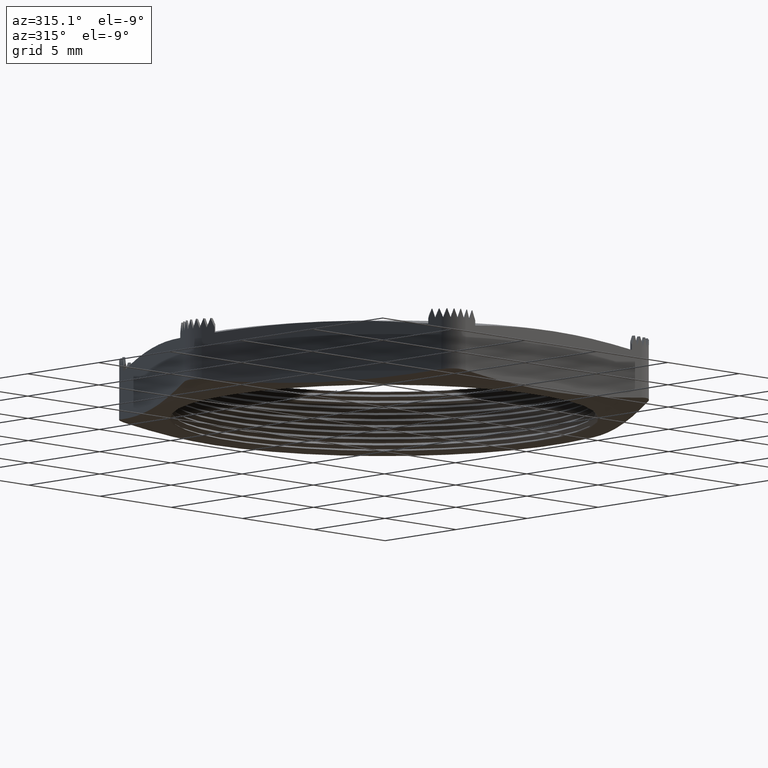
[diagram: clean part render]
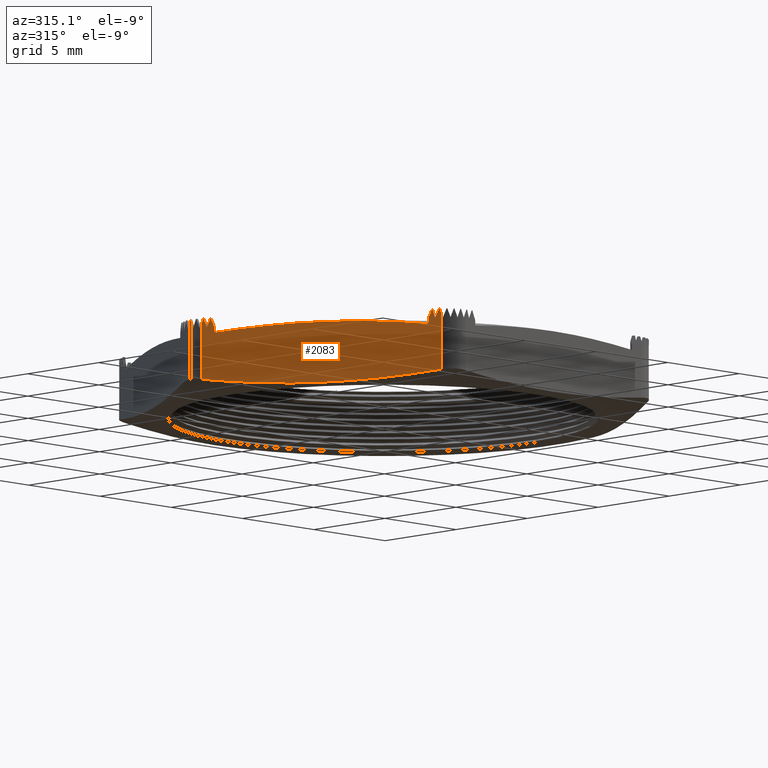
[diagram: same view with one face highlighted and labeled with its STEP entity id]
A machine part, auxiliary view. The second image highlights one B-rep face of the part: STEP entity #2083.
In plain terms, the highlighted planar face has unit normal (0.866, 0.5, 0).
Its self-contained STEP definition (entity closure, byte-faithful):
#1627 = EDGE_CURVE ( 'NONE', #2055, #2030, #4946, .T. ) ;
#2010 = ORIENTED_EDGE ( 'NONE', *, *, #2011, .T. ) ;
#2011 = EDGE_CURVE ( 'NONE', #2012, #2013, #5715, .T. ) ;
#2012 = VERTEX_POINT ( 'NONE', #5711 ) ;
#2013 = VERTEX_POINT ( 'NONE', #5710 ) ;
#2014 = ORIENTED_EDGE ( 'NONE', *, *, #2015, .T. ) ;
#2015 = EDGE_CURVE ( 'NONE', #2013, #2016, #5709, .T. ) ;
#2016 = VERTEX_POINT ( 'NONE', #5705 ) ;
#2017 = ORIENTED_EDGE ( 'NONE', *, *, #2018, .F. ) ;
#2018 = EDGE_CURVE ( 'NONE', #2019, #2016, #5754, .T. ) ;
#2019 = VERTEX_POINT ( 'NONE', #5750 ) ;
#2020 = ORIENTED_EDGE ( 'NONE', *, *, #2021, .F. ) ;
#2021 = EDGE_CURVE ( 'NONE', #2022, #2019, #5748, .T. ) ;
#2022 = VERTEX_POINT ( 'NONE', #5749 ) ;
#2023 = ORIENTED_EDGE ( 'NONE', *, *, #2024, .F. ) ;
#2024 = EDGE_CURVE ( 'NONE', #2259, #2022, #5743, .T. ) ;
#2027 = VERTEX_POINT ( 'NONE', #5737 ) ;
#2029 = EDGE_CURVE ( 'NONE', #2030, #2027, #5775, .T. ) ;
#2030 = VERTEX_POINT ( 'NONE', #5771 ) ;
#2050 = ORIENTED_EDGE ( 'NONE', *, *, #2051, .T. ) ;
#2051 = EDGE_CURVE ( 'NONE', #2265, #2052, #5799, .T. ) ;
#2052 = VERTEX_POINT ( 'NONE', #5790 ) ;
#2053 = ORIENTED_EDGE ( 'NONE', *, *, #2054, .T. ) ;
#2054 = EDGE_CURVE ( 'NONE', #2052, #2055, #5789, .T. ) ;
#2055 = VERTEX_POINT ( 'NONE', #5785 ) ;
#2056 = ORIENTED_EDGE ( 'NONE', *, *, #1627, .T. ) ;
#2083 = ADVANCED_FACE ( 'NONE', ( #5848 ), #5847, .F. ) ;
#2084 = EDGE_LOOP ( 'NONE', ( #2010, #2014, #2017, #2020, #2023, #2260, #2263, #2050, #2053, #2056, #2318, #2319, #2322, #2325, #2328, #2331 ) ) ;
#2259 = VERTEX_POINT ( 'NONE', #6236 ) ;
#2260 = ORIENTED_EDGE ( 'NONE', *, *, #2261, .T. ) ;
#2261 = EDGE_CURVE ( 'NONE', #2259, #2262, #6235, .T. ) ;
#2262 = VERTEX_POINT ( 'NONE', #6231 ) ;
#2263 = ORIENTED_EDGE ( 'NONE', *, *, #2264, .T. ) ;
#2264 = EDGE_CURVE ( 'NONE', #2262, #2265, #6230, .T. ) ;
#2265 = VERTEX_POINT ( 'NONE', #6226 ) ;
#2318 = ORIENTED_EDGE ( 'NONE', *, *, #2029, .T. ) ;
#2319 = ORIENTED_EDGE ( 'NONE', *, *, #2320, .F. ) ;
#2320 = EDGE_CURVE ( 'NONE', #2321, #2027, #6358, .T. ) ;
#2321 = VERTEX_POINT ( 'NONE', #6357 ) ;
#2322 = ORIENTED_EDGE ( 'NONE', *, *, #2323, .F. ) ;
#2323 = EDGE_CURVE ( 'NONE', #2324, #2321, #6350, .T. ) ;
#2324 = VERTEX_POINT ( 'NONE', #6349 ) ;
#2325 = ORIENTED_EDGE ( 'NONE', *, *, #2326, .T. ) ;
#2326 = EDGE_CURVE ( 'NONE', #2324, #2327, #6342, .T. ) ;
#2327 = VERTEX_POINT ( 'NONE', #6338 ) ;
#2328 = ORIENTED_EDGE ( 'NONE', *, *, #2329, .T. ) ;
#2329 = EDGE_CURVE ( 'NONE', #2327, #2330, #6337, .T. ) ;
#2330 = VERTEX_POINT ( 'NONE', #6333 ) ;
#2331 = ORIENTED_EDGE ( 'NONE', *, *, #2332, .T. ) ;
#2332 = EDGE_CURVE ( 'NONE', #2330, #2012, #6385, .T. ) ;
#4943 = DIRECTION ( 'NONE',  ( -0.1966082717592501900, 0.3405355158753307100, -0.9194458928633936200 ) ) ;
#4944 = VECTOR ( 'NONE', #4943, 39.37007874015748100 ) ;
#4945 = CARTESIAN_POINT ( 'NONE',  ( -0.5320528221612974600, -0.01845747970622448700, 0.1108851952068027100 ) ) ;
#4946 = LINE ( 'NONE', #4945, #4944 ) ;
#5705 = CARTESIAN_POINT ( 'NONE',  ( -0.2987883832481704200, -0.4224833395015389300, 0.1177500000000652700 ) ) ;
#5706 = DIRECTION ( 'NONE',  ( -0.1966082717592658200, 0.3405355158753579600, -0.9194458928633803000 ) ) ;
#5707 = VECTOR ( 'NONE', #5706, 39.37007874015748100 ) ;
#5708 = CARTESIAN_POINT ( 'NONE',  ( -0.3360965112156866800, -0.3578637663277878800, -0.05672284756929450000 ) ) ;
#5709 = LINE ( 'NONE', #5708, #5707 ) ;
#5710 = CARTESIAN_POINT ( 'NONE',  ( -0.2947469313645360000, -0.4294833395016073300, 0.1366500000000000200 ) ) ;
#5711 = CARTESIAN_POINT ( 'NONE',  ( -0.2915618859407596600, -0.4350000000000024400, 0.1177499999999999900 ) ) ;
#5712 = DIRECTION ( 'NONE',  ( -0.1596944269318402400, 0.2765988611315431400, 0.9476237439129753200 ) ) ;
#5713 = VECTOR ( 'NONE', #5712, 39.37007874015748900 ) ;
#5714 = CARTESIAN_POINT ( 'NONE',  ( -0.3175217309985778300, -0.3900362294032456700, 0.2717952352516351800 ) ) ;
#5715 = LINE ( 'NONE', #5714, #5713 ) ;
#5737 = CARTESIAN_POINT ( 'NONE',  ( -0.5282754963085075600, -0.02499999999999996000, 0.01577328817917139600 ) ) ;
#5739 = CARTESIAN_POINT ( 'NONE',  ( -0.4070319397786862400, -0.2349999999999999300, 0.1200000000000000000 ) ) ;
#5740 = CARTESIAN_POINT ( 'NONE',  ( -0.4431131252886265600, -0.1725055534994654500, 0.1200000000000000000 ) ) ;
#5741 = CARTESIAN_POINT ( 'NONE',  ( -0.4791943107985667800, -0.1100111069989308500, 0.1153720740230361900 ) ) ;
#5742 = CARTESIAN_POINT ( 'NONE',  ( -0.5152754963085071100, -0.04751666049839629200, 0.1072826604981900200 ) ) ;
#5743 = B_SPLINE_CURVE_WITH_KNOTS ( 'NONE', 3,
 ( #5742, #5741, #5740, #5739 ),
 .UNSPECIFIED., .F., .F.,
 ( 4, 4 ),
 ( 0.0006606309401077025600, 0.006159403611822602100 ),
 .UNSPECIFIED. ) ;
#5744 = CARTESIAN_POINT ( 'NONE',  ( -0.2987883832488640300, -0.4224833395016060500, 0.1072826604981897000 ) ) ;
#5745 = CARTESIAN_POINT ( 'NONE',  ( -0.3348695687588046900, -0.3599888930010707300, 0.1153720740230360600 ) ) ;
#5746 = CARTESIAN_POINT ( 'NONE',  ( -0.3709507542687454600, -0.2974944465005353600, 0.1200000000000000000 ) ) ;
#5747 = CARTESIAN_POINT ( 'NONE',  ( -0.4070319397786862400, -0.2349999999999999300, 0.1200000000000000000 ) ) ;
#5748 = B_SPLINE_CURVE_WITH_KNOTS ( 'NONE', 3,
 ( #5747, #5746, #5745, #5744 ),
 .UNSPECIFIED., .F., .F.,
 ( 4, 4 ),
 ( 0.006159403611822602100, 0.01165817628353757500 ),
 .UNSPECIFIED. ) ;
#5749 = CARTESIAN_POINT ( 'NONE',  ( -0.4070319397786862400, -0.2349999999999999300, 0.1200000000000000000 ) ) ;
#5750 = CARTESIAN_POINT ( 'NONE',  ( -0.2987883832488640300, -0.4224833395016060500, 0.1072826604981897000 ) ) ;
#5751 = DIRECTION ( 'NONE',  ( 0.0000000000000000000, 0.0000000000000000000, 1.000000000000000000 ) ) ;
#5752 = VECTOR ( 'NONE', #5751, 39.37007874015748100 ) ;
#5753 = CARTESIAN_POINT ( 'NONE',  ( -0.2987883832488629200, -0.4224833395016060500, -19685.03937007874300 ) ) ;
#5754 = LINE ( 'NONE', #5753, #5752 ) ;
#5771 = CARTESIAN_POINT ( 'NONE',  ( -0.5282754963085075600, -0.02499999999999995600, 0.1285499999999965000 ) ) ;
#5772 = DIRECTION ( 'NONE',  ( 0.0000000000000000000, 0.0000000000000000000, -1.000000000000000000 ) ) ;
#5773 = VECTOR ( 'NONE', #5772, 39.37007874015748100 ) ;
#5774 = CARTESIAN_POINT ( 'NONE',  ( -0.5282754963085075600, -0.02499999999999995600, 0.1200000000000000000 ) ) ;
#5775 = LINE ( 'NONE', #5774, #5773 ) ;
#5785 = CARTESIAN_POINT ( 'NONE',  ( -0.5265434455009380100, -0.02800000000000125000, 0.1366500000000000200 ) ) ;
#5786 = DIRECTION ( 'NONE',  ( -0.1596944269318401600, 0.2765988611315430300, 0.9476237439129755500 ) ) ;
#5787 = VECTOR ( 'NONE', #5786, 39.37007874015748100 ) ;
#5788 = CARTESIAN_POINT ( 'NONE',  ( -0.5256728588996840700, -0.02950790022576166600, 0.1314839553838482400 ) ) ;
#5789 = LINE ( 'NONE', #5788, #5787 ) ;
#5790 = CARTESIAN_POINT ( 'NONE',  ( -0.5233584000771617200, -0.03351666049839652900, 0.1177500000000000200 ) ) ;
#5791 = DIRECTION ( 'NONE',  ( -0.1966082717592501900, 0.3405355158753307100, -0.9194458928633936200 ) ) ;
#5792 = VECTOR ( 'NONE', #5791, 39.37007874015748100 ) ;
#5793 = CARTESIAN_POINT ( 'NONE',  ( -0.5259436804477981600, -0.02903882354464368300, 0.1056598402248673000 ) ) ;
#5799 = LINE ( 'NONE', #5793, #5792 ) ;
#5843 = DIRECTION ( 'NONE',  ( -0.4999999999999997200, 0.8660254037844388200, 0.0000000000000000000 ) ) ;
#5844 = DIRECTION ( 'NONE',  ( 0.8660254037844388200, 0.4999999999999997200, 0.0000000000000000000 ) ) ;
#5845 = CARTESIAN_POINT ( 'NONE',  ( -0.5427092530382482400, 6.785363089126251600E-017, 0.1200000000000000000 ) ) ;
#5846 = AXIS2_PLACEMENT_3D ( 'NONE', #5845, #5844, #5843 ) ;
#5847 = PLANE ( 'NONE',  #5846 ) ;
#5848 = FACE_OUTER_BOUND ( 'NONE', #2084, .T. ) ;
#6226 = CARTESIAN_POINT ( 'NONE',  ( -0.5193169481928343600, -0.04051666049839653500, 0.1366500000000000200 ) ) ;
#6227 = DIRECTION ( 'NONE',  ( -0.1966082717592650400, 0.3405355158753564600, 0.9194458928633809600 ) ) ;
#6228 = VECTOR ( 'NONE', #6227, 39.37007874015748100 ) ;
#6229 = CARTESIAN_POINT ( 'NONE',  ( -0.5199240172043305700, -0.03946518612678454100, 0.1394889808033521500 ) ) ;
#6230 = LINE ( 'NONE', #6229, #6228 ) ;
#6231 = CARTESIAN_POINT ( 'NONE',  ( -0.5152754963113447300, -0.04751666049855635800, 0.1177500000000652700 ) ) ;
#6232 = DIRECTION ( 'NONE',  ( 0.0000000000000000000, 0.0000000000000000000, 1.000000000000000000 ) ) ;
#6233 = VECTOR ( 'NONE', #6232, 39.37007874015748100 ) ;
#6234 = CARTESIAN_POINT ( 'NONE',  ( -0.5152754963085074400, -0.04751666049839652800, -19685.03937007874300 ) ) ;
#6235 = LINE ( 'NONE', #6234, #6233 ) ;
#6236 = CARTESIAN_POINT ( 'NONE',  ( -0.5152754963085071100, -0.04751666049839629200, 0.1072826604981900200 ) ) ;
#6333 = CARTESIAN_POINT ( 'NONE',  ( -0.2875204340564322400, -0.4420000000000025600, 0.1366499999999999900 ) ) ;
#6334 = DIRECTION ( 'NONE',  ( -0.1966082717592518000, 0.3405355158753334800, 0.9194458928633921800 ) ) ;
#6335 = VECTOR ( 'NONE', #6334, 39.37007874015748100 ) ;
#6336 = CARTESIAN_POINT ( 'NONE',  ( -0.3239677062587136800, -0.3788714727483583100, 0.3070970235794378600 ) ) ;
#6337 = LINE ( 'NONE', #6336, #6335 ) ;
#6338 = CARTESIAN_POINT ( 'NONE',  ( -0.2857883832488649600, -0.4449999999999999000, 0.1285500000000071300 ) ) ;
#6339 = DIRECTION ( 'NONE',  ( 0.0000000000000000000, 0.0000000000000000000, 1.000000000000000000 ) ) ;
#6340 = VECTOR ( 'NONE', #6339, 39.37007874015748100 ) ;
#6341 = CARTESIAN_POINT ( 'NONE',  ( -0.2857883832488649600, -0.4449999999999999000, 0.1200000000000000000 ) ) ;
#6342 = LINE ( 'NONE', #6341, #6340 ) ;
#6343 = CARTESIAN_POINT ( 'NONE',  ( -0.4070319397786864600, -0.2350000000000000100, 0.0000000000000000000 ) ) ;
#6344 = CARTESIAN_POINT ( 'NONE',  ( -0.3868246803570494200, -0.2699999999999999100, -2.334342768023662500E-017 ) ) ;
#6345 = CARTESIAN_POINT ( 'NONE',  ( -0.3666174209354125500, -0.3049999999999999900, 0.001417824976474291700 ) ) ;
#6346 = CARTESIAN_POINT ( 'NONE',  ( -0.3262029020921387600, -0.3749999999999999400, 0.006827745501429576300 ) ) ;
#6347 = CARTESIAN_POINT ( 'NONE',  ( -0.3059956426705017200, -0.4099999999999997000, 0.01080813907479300300 ) ) ;
#6348 = CARTESIAN_POINT ( 'NONE',  ( -0.2857883832488650200, -0.4449999999999999000, 0.01577328817917141700 ) ) ;
#6349 = CARTESIAN_POINT ( 'NONE',  ( -0.2857883832488650200, -0.4449999999999999000, 0.01577328817917141700 ) ) ;
#6350 = B_SPLINE_CURVE_WITH_KNOTS ( 'NONE', 3,
 ( #6348, #6347, #6346, #6345, #6344, #6343 ),
 .UNSPECIFIED., .F., .F.,
 ( 4, 2, 4 ),
 ( 2.309401076787569000E-007, 0.003079817275965141700, 0.006159403611822604700 ),
 .UNSPECIFIED. ) ;
#6351 = CARTESIAN_POINT ( 'NONE',  ( -0.5282754963085075600, -0.02499999999999996000, 0.01577328817917139600 ) ) ;
#6352 = CARTESIAN_POINT ( 'NONE',  ( -0.5080682368868707500, -0.05999999999999994200, 0.01080813907479299800 ) ) ;
#6353 = CARTESIAN_POINT ( 'NONE',  ( -0.4878609774652337100, -0.09499999999999995900, 0.006827745501429566800 ) ) ;
#6354 = CARTESIAN_POINT ( 'NONE',  ( -0.4474464586219600900, -0.1649999999999999500, 0.001417824976474284500 ) ) ;
#6355 = CARTESIAN_POINT ( 'NONE',  ( -0.4272391992003229900, -0.1999999999999999300, -2.190947426559351000E-017 ) ) ;
#6356 = CARTESIAN_POINT ( 'NONE',  ( -0.4070319397786864600, -0.2350000000000000100, 0.0000000000000000000 ) ) ;
#6357 = CARTESIAN_POINT ( 'NONE',  ( -0.4070319397786864600, -0.2350000000000000100, 0.0000000000000000000 ) ) ;
#6358 = B_SPLINE_CURVE_WITH_KNOTS ( 'NONE', 3,
 ( #6356, #6355, #6354, #6353, #6352, #6351 ),
 .UNSPECIFIED., .F., .F.,
 ( 4, 2, 4 ),
 ( 0.006159403611822604700, 0.009238989947680067600, 0.01231857628353753000 ),
 .UNSPECIFIED. ) ;
#6382 = DIRECTION ( 'NONE',  ( -0.1966082717592509700, 0.3405355158753321000, -0.9194458928633929600 ) ) ;
#6383 = VECTOR ( 'NONE', #6382, 39.37007874015748900 ) ;
#6384 = CARTESIAN_POINT ( 'NONE',  ( -0.3299873695021814400, -0.3684451101662173400, -0.06194820255121916800 ) ) ;
#6385 = LINE ( 'NONE', #6384, #6383 ) ;